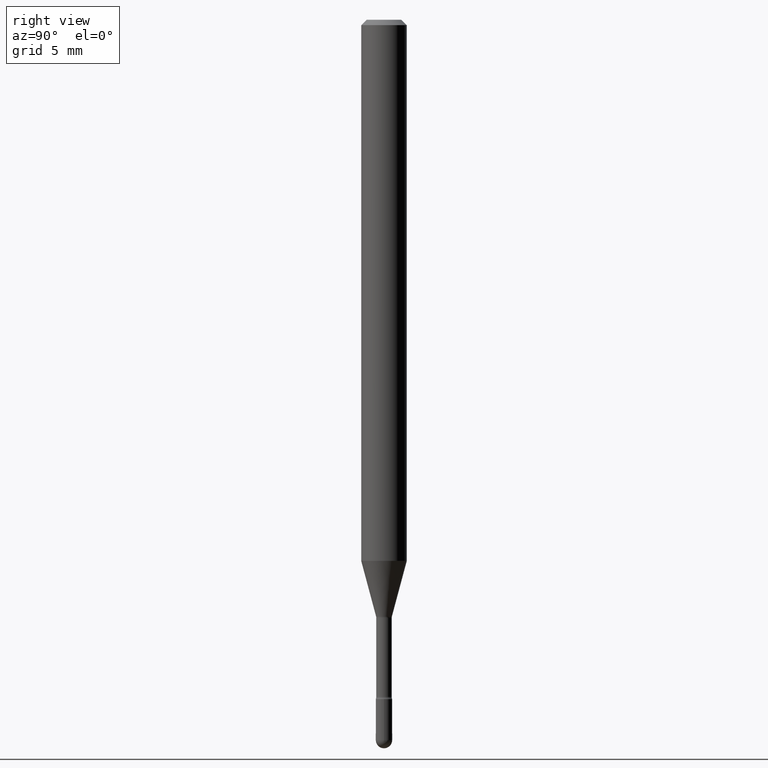
[diagram: clean part render]
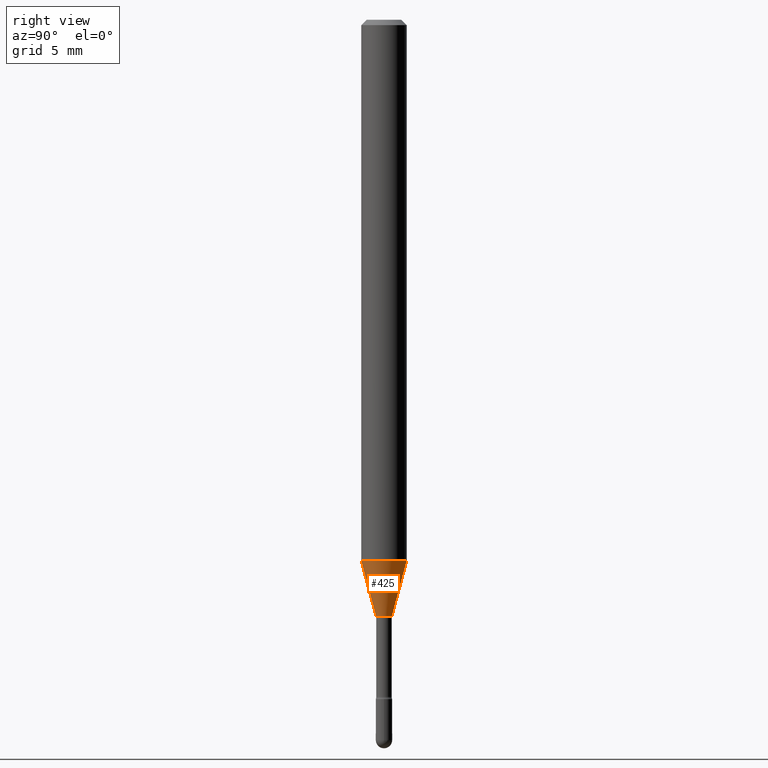
[diagram: same view with one face highlighted and labeled with its STEP entity id]
A machine part, right view. The second image highlights one B-rep face of the part: STEP entity #425.
In plain terms, the highlighted conical surface has half-angle 15 deg.
Its self-contained STEP definition (entity closure, byte-faithful):
#3 = VECTOR ( 'NONE', #277, 39.37007874015748143 ) ;
#18 = LINE ( 'NONE', #98, #3 ) ;
#23 = CARTESIAN_POINT ( 'NONE',  ( 4.005819137426080629E-29, -5.719491093677303486E-15, -1.638092501787273170 ) ) ;
#50 = VERTEX_POINT ( 'NONE', #82 ) ;
#61 = AXIS2_PLACEMENT_3D ( 'NONE', #294, #473, #247 ) ;
#82 = CARTESIAN_POINT ( 'NONE',  ( 2.990003359772499771E-16, 0.02166111260565826632, -1.638092501787273170 ) ) ;
#88 = VERTEX_POINT ( 'NONE', #487 ) ;
#98 = CARTESIAN_POINT ( 'NONE',  ( 1.539114621044008531E-16, 0.02166111260565826632, -1.638092501787273170 ) ) ;
#106 = FACE_OUTER_BOUND ( 'NONE', #197, .T. ) ;
#109 = CARTESIAN_POINT ( 'NONE',  ( -1.512587408824710319E-16, -0.02166111260566970509, -1.638092501787273170 ) ) ;
#127 = CARTESIAN_POINT ( 'NONE',  ( 3.633106289342633259E-29, -5.187333314711248527E-15, -1.485679699107027130 ) ) ;
#149 = AXIS2_PLACEMENT_3D ( 'NONE', #23, #196, #360 ) ;
#157 = EDGE_CURVE ( 'NONE', #50, #88, #18, .T. ) ;
#169 = VERTEX_POINT ( 'NONE', #408 ) ;
#184 = LINE ( 'NONE', #356, #314 ) ;
#185 = ORIENTED_EDGE ( 'NONE', *, *, #508, .F. ) ;
#196 = DIRECTION ( 'NONE',  ( -2.445416930396453536E-29, 3.491555627925126489E-15, 1.000000000000000000 ) ) ;
#197 = EDGE_LOOP ( 'NONE', ( #457, #421, #185, #414 ) ) ;
#239 = EDGE_CURVE ( 'NONE', #377, #50, #514, .T. ) ;
#247 = DIRECTION ( 'NONE',  ( -6.982962677686265133E-15, -1.000000000000000000, 0.000000000000000000 ) ) ;
#253 = EDGE_CURVE ( 'NONE', #377, #169, #184, .T. ) ;
#277 = DIRECTION ( 'NONE',  ( 1.839019923739595977E-15, 0.2588190451025243477, 0.9659258262890673130 ) ) ;
#294 = CARTESIAN_POINT ( 'NONE',  ( 4.005819137426080629E-29, -5.719491093677303486E-15, -1.638092501787273170 ) ) ;
#314 = VECTOR ( 'NONE', #537, 39.37007874015748854 ) ;
#356 = CARTESIAN_POINT ( 'NONE',  ( -1.512587408824710319E-16, -0.02166111260566970509, -1.638092501787273170 ) ) ;
#360 = DIRECTION ( 'NONE',  ( -6.982962677686265133E-15, -1.000000000000000000, 0.000000000000000000 ) ) ;
#377 = VERTEX_POINT ( 'NONE', #109 ) ;
#408 = CARTESIAN_POINT ( 'NONE',  ( -4.364351673553553325E-16, -0.06250000000000520417, -1.485679699107026686 ) ) ;
#414 = ORIENTED_EDGE ( 'NONE', *, *, #253, .F. ) ;
#421 = ORIENTED_EDGE ( 'NONE', *, *, #157, .T. ) ;
#425 = ADVANCED_FACE ( 'NONE', ( #106 ), #491, .T. ) ;
#447 = AXIS2_PLACEMENT_3D ( 'NONE', #127, #471, #516 ) ;
#455 = CIRCLE ( 'NONE', #447, 0.06250000000000000000 ) ;
#457 = ORIENTED_EDGE ( 'NONE', *, *, #239, .T. ) ;
#471 = DIRECTION ( 'NONE',  ( -2.445416930396453536E-29, 3.491555627925126489E-15, 1.000000000000000000 ) ) ;
#473 = DIRECTION ( 'NONE',  ( -2.445416930396453536E-29, 3.491555627925126489E-15, 1.000000000000000000 ) ) ;
#487 = CARTESIAN_POINT ( 'NONE',  ( 4.440892098500988052E-16, 0.06249999999999478889, -1.485679699107027352 ) ) ;
#491 = CONICAL_SURFACE ( 'NONE', #61, 0.02166111260566398744, 0.2617993877991496299 ) ;
#508 = EDGE_CURVE ( 'NONE', #169, #88, #455, .T. ) ;
#514 = CIRCLE ( 'NONE', #149, 0.02166111260566398744 ) ;
#516 = DIRECTION ( 'NONE',  ( -6.982962677686265922E-15, -1.000000000000000000, 4.370956789862821150E-15 ) ) ;
#537 = DIRECTION ( 'NONE',  ( -1.807323732225325801E-15, -0.2588190451025175753, 0.9659258262890690894 ) ) ;